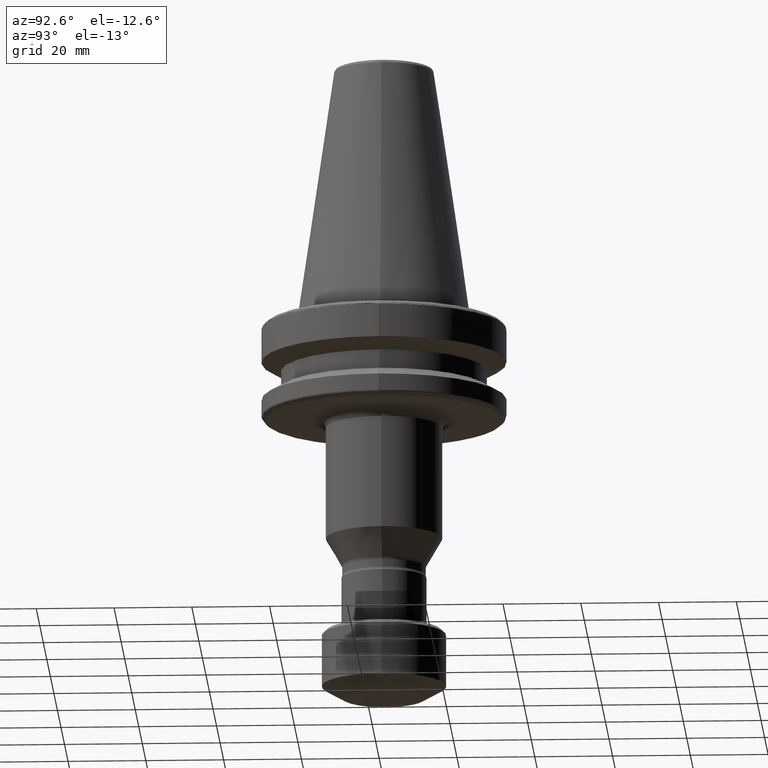
[diagram: clean part render]
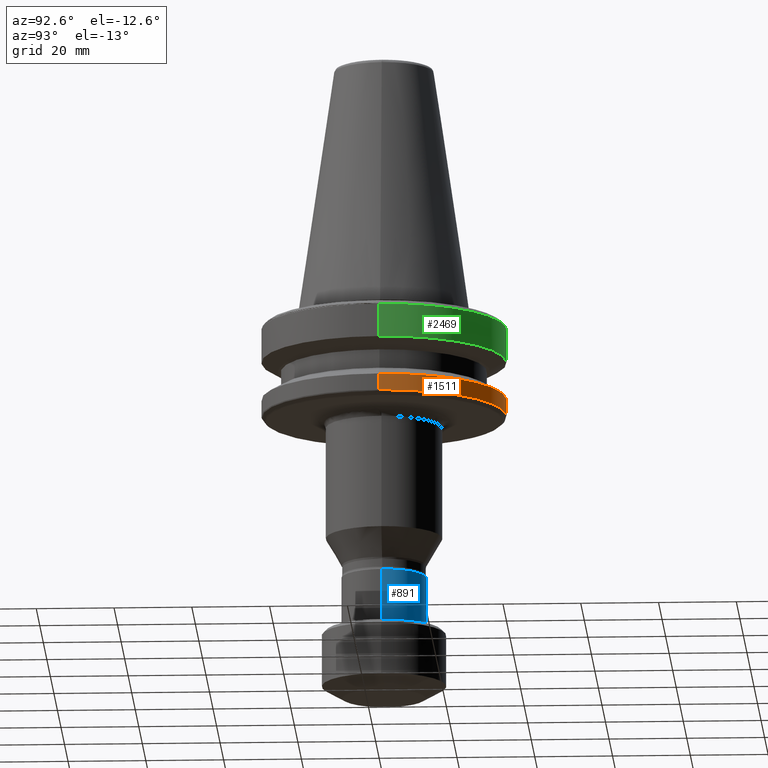
[diagram: same view with three faces highlighted in distinct colors, each labeled with its STEP entity id]
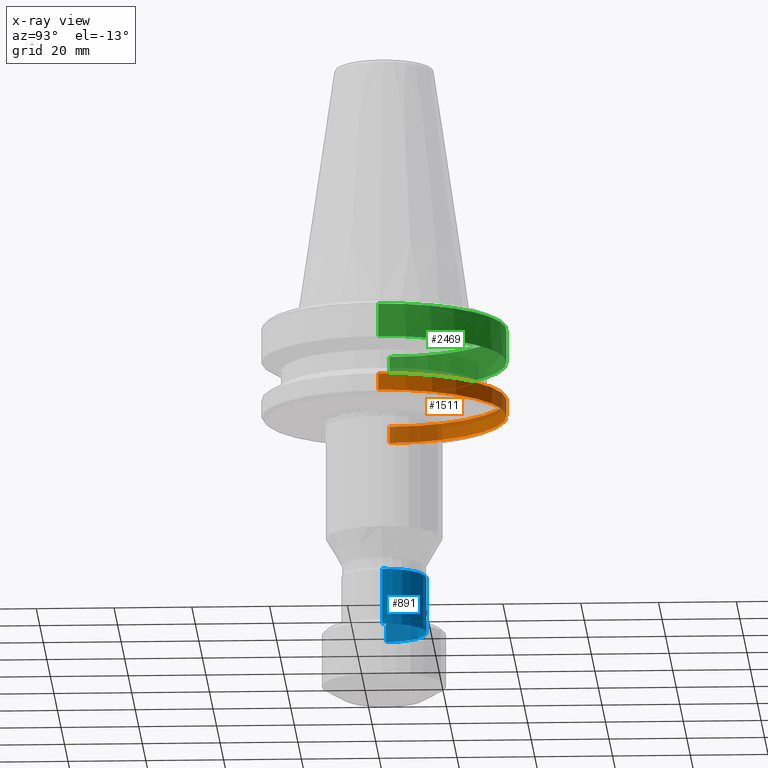
[diagram: x-ray of the same camera — body ghosted, the three highlighted faces saturated]
A machine part, auxiliary view with three faces highlighted in distinct colors.
The next image is the same camera in x-ray (body ghosted, the three faces saturated) — at least one of them is partly hidden behind the body in this view.
Their STEP definitions:

[orange] entity #1511 — the highlighted cylindrical surface (partial cylindrical patch) has radius 31.5 mm, axis along (-0, 0, 1).
#14 = LINE ( 'NONE', #2401, #592 ) ;
#123 = LINE ( 'NONE', #4025, #899 ) ;
#190 = EDGE_CURVE ( 'NONE', #3619, #1683, #1111, .T. ) ;
#395 = DIRECTION ( 'NONE',  ( -5.507058653894625200E-017, 0.0000000000000000000, 1.000000000000000000 ) ) ;
#554 = CARTESIAN_POINT ( 'NONE',  ( 109.4815869561177100, 103.8751982920319800, 76.71897067677052500 ) ) ;
#592 = VECTOR ( 'NONE', #2316, 1000.000000000000000 ) ;
#677 = CYLINDRICAL_SURFACE ( 'NONE', #1062, 31.50000000000000000 ) ;
#693 = FACE_OUTER_BOUND ( 'NONE', #2207, .T. ) ;
#849 = CIRCLE ( 'NONE', #1411, 31.49999999958851800 ) ;
#899 = VECTOR ( 'NONE', #3114, 1000.000000000000000 ) ;
#922 = EDGE_CURVE ( 'NONE', #3619, #1858, #123, .T. ) ;
#948 = EDGE_CURVE ( 'NONE', #1858, #3353, #849, .T. ) ;
#1062 = AXIS2_PLACEMENT_3D ( 'NONE', #3304, #395, #2132 ) ;
#1111 = CIRCLE ( 'NONE', #1157, 31.50000000000000000 ) ;
#1157 = AXIS2_PLACEMENT_3D ( 'NONE', #1955, #1817, #2842 ) ;
#1175 = DIRECTION ( 'NONE',  ( -1.000000000000000000, 0.0000000000000000000, 0.0000000000000000000 ) ) ;
#1411 = AXIS2_PLACEMENT_3D ( 'NONE', #1965, #3330, #1175 ) ;
#1511 = ADVANCED_FACE ( 'NONE', ( #693 ), #677, .T. ) ;
#1646 = ORIENTED_EDGE ( 'NONE', *, *, #922, .T. ) ;
#1683 = VERTEX_POINT ( 'NONE', #3828 ) ;
#1817 = DIRECTION ( 'NONE',  ( -0.0000000000000000000, -0.0000000000000000000, -1.000000000000000000 ) ) ;
#1858 = VERTEX_POINT ( 'NONE', #3742 ) ;
#1955 = CARTESIAN_POINT ( 'NONE',  ( 77.98158695652918500, 103.8751982920319800, 72.43272266320468600 ) ) ;
#1965 = CARTESIAN_POINT ( 'NONE',  ( 77.98158695652918500, 103.8751982920319800, 76.71897067677052500 ) ) ;
#2132 = DIRECTION ( 'NONE',  ( 1.000000000000000000, 0.0000000000000000000, 0.0000000000000000000 ) ) ;
#2207 = EDGE_LOOP ( 'NONE', ( #2805, #1646, #3347, #2416 ) ) ;
#2316 = DIRECTION ( 'NONE',  ( -5.507058653894625200E-017, 0.0000000000000000000, 1.000000000000000000 ) ) ;
#2401 = CARTESIAN_POINT ( 'NONE',  ( 109.4815869565291800, 103.8751982920319800, 72.43272266320468600 ) ) ;
#2416 = ORIENTED_EDGE ( 'NONE', *, *, #3320, .F. ) ;
#2805 = ORIENTED_EDGE ( 'NONE', *, *, #190, .F. ) ;
#2842 = DIRECTION ( 'NONE',  ( 0.0000000000000000000, -1.000000000000000000, 0.0000000000000000000 ) ) ;
#3114 = DIRECTION ( 'NONE',  ( -5.507058653894625200E-017, 0.0000000000000000000, 1.000000000000000000 ) ) ;
#3148 = CARTESIAN_POINT ( 'NONE',  ( 46.48158695652917800, 103.8751982823408500, 72.43272266321125100 ) ) ;
#3304 = CARTESIAN_POINT ( 'NONE',  ( 77.98158695652918500, 103.8751982920319800, 72.43272266320468600 ) ) ;
#3320 = EDGE_CURVE ( 'NONE', #1683, #3353, #14, .T. ) ;
#3330 = DIRECTION ( 'NONE',  ( -0.0000000000000000000, -0.0000000000000000000, -1.000000000000000000 ) ) ;
#3347 = ORIENTED_EDGE ( 'NONE', *, *, #948, .T. ) ;
#3353 = VERTEX_POINT ( 'NONE', #554 ) ;
#3619 = VERTEX_POINT ( 'NONE', #3148 ) ;
#3742 = CARTESIAN_POINT ( 'NONE',  ( 46.48158695694066700, 103.8751982920319800, 76.71897067677052500 ) ) ;
#3828 = CARTESIAN_POINT ( 'NONE',  ( 109.4815869565291800, 103.8751982936471700, 72.43272266320468600 ) ) ;
#4025 = CARTESIAN_POINT ( 'NONE',  ( 46.48158695652917800, 103.8751982920319800, 72.43272266320468600 ) ) ;

[blue] entity #891 — the highlighted cylindrical surface (partial cylindrical patch) has radius 10.95 mm, axis along (0, -0, 1).
#393 = DIRECTION ( 'NONE',  ( 1.000000000000000000, 0.0000000000000000000, 0.0000000000000000000 ) ) ;
#437 = EDGE_CURVE ( 'NONE', #1258, #2618, #1042, .T. ) ;
#751 = CIRCLE ( 'NONE', #3190, 10.95000000000000100 ) ;
#795 = VECTOR ( 'NONE', #3650, 1000.000000000000000 ) ;
#833 = LINE ( 'NONE', #3885, #795 ) ;
#858 = CIRCLE ( 'NONE', #2673, 10.95000000000000100 ) ;
#868 = CARTESIAN_POINT ( 'NONE',  ( 88.93158695652918800, 103.8751982920319800, 15.44949459036471000 ) ) ;
#872 = CYLINDRICAL_SURFACE ( 'NONE', #1212, 10.95000000000000100 ) ;
#875 = FACE_OUTER_BOUND ( 'NONE', #1843, .T. ) ;
#891 = ADVANCED_FACE ( 'NONE', ( #875 ), #872, .T. ) ;
#980 = EDGE_CURVE ( 'NONE', #1258, #2836, #858, .T. ) ;
#1037 = VECTOR ( 'NONE', #1129, 1000.000000000000000 ) ;
#1042 = LINE ( 'NONE', #2477, #1037 ) ;
#1061 = CARTESIAN_POINT ( 'NONE',  ( 88.93158695652918800, 103.8751982920319800, 29.86703723820469100 ) ) ;
#1128 = EDGE_CURVE ( 'NONE', #2836, #2466, #833, .T. ) ;
#1129 = DIRECTION ( 'NONE',  ( 0.0000000000000000000, -0.0000000000000000000, 1.000000000000000000 ) ) ;
#1139 = CARTESIAN_POINT ( 'NONE',  ( 77.98158695652918500, 103.8751982920319800, 29.86703723820469100 ) ) ;
#1212 = AXIS2_PLACEMENT_3D ( 'NONE', #2360, #2915, #2343 ) ;
#1258 = VERTEX_POINT ( 'NONE', #868 ) ;
#1327 = DIRECTION ( 'NONE',  ( 0.0000000000000000000, 0.0000000000000000000, 1.000000000000000000 ) ) ;
#1356 = DIRECTION ( 'NONE',  ( 0.0000000000000000000, -0.0000000000000000000, 1.000000000000000000 ) ) ;
#1383 = EDGE_CURVE ( 'NONE', #2618, #2466, #751, .T. ) ;
#1775 = ORIENTED_EDGE ( 'NONE', *, *, #437, .F. ) ;
#1843 = EDGE_LOOP ( 'NONE', ( #3004, #2013, #2452, #1775 ) ) ;
#1993 = CARTESIAN_POINT ( 'NONE',  ( 77.98158695652918500, 103.8751982920319800, 15.44949459036471000 ) ) ;
#2013 = ORIENTED_EDGE ( 'NONE', *, *, #1128, .T. ) ;
#2038 = DIRECTION ( 'NONE',  ( 1.000000000000000000, 0.0000000000000000000, 0.0000000000000000000 ) ) ;
#2343 = DIRECTION ( 'NONE',  ( 1.000000000000000000, 0.0000000000000000000, 0.0000000000000000000 ) ) ;
#2360 = CARTESIAN_POINT ( 'NONE',  ( 77.98158695652918500, 103.8751982920319800, 12.31703723820469400 ) ) ;
#2452 = ORIENTED_EDGE ( 'NONE', *, *, #1383, .F. ) ;
#2466 = VERTEX_POINT ( 'NONE', #2506 ) ;
#2477 = CARTESIAN_POINT ( 'NONE',  ( 88.93158695652918800, 103.8751982920319800, 12.31703723820469400 ) ) ;
#2506 = CARTESIAN_POINT ( 'NONE',  ( 67.03158695652918200, 103.8751982920319800, 29.86703723820469100 ) ) ;
#2618 = VERTEX_POINT ( 'NONE', #1061 ) ;
#2673 = AXIS2_PLACEMENT_3D ( 'NONE', #1993, #1356, #2038 ) ;
#2836 = VERTEX_POINT ( 'NONE', #3618 ) ;
#2915 = DIRECTION ( 'NONE',  ( 0.0000000000000000000, -0.0000000000000000000, 1.000000000000000000 ) ) ;
#3004 = ORIENTED_EDGE ( 'NONE', *, *, #980, .T. ) ;
#3190 = AXIS2_PLACEMENT_3D ( 'NONE', #1139, #1327, #393 ) ;
#3618 = CARTESIAN_POINT ( 'NONE',  ( 67.03158695652918200, 103.8751982920319800, 15.44949459036471000 ) ) ;
#3650 = DIRECTION ( 'NONE',  ( 0.0000000000000000000, -0.0000000000000000000, 1.000000000000000000 ) ) ;
#3885 = CARTESIAN_POINT ( 'NONE',  ( 67.03158695652918200, 103.8751982920319800, 12.31703723820469400 ) ) ;

[green] entity #2469 — the highlighted cylindrical surface (partial cylindrical patch) has radius 31.5 mm, axis along (-0, 0, 1).
#147 = AXIS2_PLACEMENT_3D ( 'NONE', #3595, #3605, #3477 ) ;
#306 = CYLINDRICAL_SURFACE ( 'NONE', #1446, 31.50000000000000000 ) ;
#318 = FACE_OUTER_BOUND ( 'NONE', #4004, .T. ) ;
#387 = VECTOR ( 'NONE', #3492, 1000.000000000000000 ) ;
#406 = LINE ( 'NONE', #3150, #387 ) ;
#453 = CIRCLE ( 'NONE', #1220, 31.50000000056924100 ) ;
#497 = CIRCLE ( 'NONE', #3931, 31.50000000000000000 ) ;
#717 = CARTESIAN_POINT ( 'NONE',  ( 77.98158695652918500, 103.8751982920319800, 95.10135181220469700 ) ) ;
#801 = CIRCLE ( 'NONE', #147, 31.50000000056924800 ) ;
#910 = LINE ( 'NONE', #1366, #1417 ) ;
#955 = DIRECTION ( 'NONE',  ( 1.000000000000000000, 0.0000000000000000000, 0.0000000000000000000 ) ) ;
#984 = DIRECTION ( 'NONE',  ( 0.0000000000000000000, 0.0000000000000000000, 1.000000000000000000 ) ) ;
#1027 = DIRECTION ( 'NONE',  ( 1.000000000000000000, 0.0000000000000000000, 0.0000000000000000000 ) ) ;
#1180 = EDGE_CURVE ( 'NONE', #3756, #1913, #801, .T. ) ;
#1211 = DIRECTION ( 'NONE',  ( -0.0000000000000000000, -0.0000000000000000000, -1.000000000000000000 ) ) ;
#1220 = AXIS2_PLACEMENT_3D ( 'NONE', #3053, #1211, #3371 ) ;
#1252 = VERTEX_POINT ( 'NONE', #2483 ) ;
#1259 = CARTESIAN_POINT ( 'NONE',  ( 77.98158695652918500, 103.8751982920319800, 86.66717924420468900 ) ) ;
#1265 = CARTESIAN_POINT ( 'NONE',  ( 109.4815869570984100, 103.8751982920319800, 86.56108534803942700 ) ) ;
#1366 = CARTESIAN_POINT ( 'NONE',  ( 46.48158695652917800, 103.8751982920319800, 86.66717924420468900 ) ) ;
#1388 = CIRCLE ( 'NONE', #2679, 31.49999999963487700 ) ;
#1394 = VERTEX_POINT ( 'NONE', #1265 ) ;
#1417 = VECTOR ( 'NONE', #1951, 1000.000000000000000 ) ;
#1446 = AXIS2_PLACEMENT_3D ( 'NONE', #1259, #1909, #955 ) ;
#1482 = VERTEX_POINT ( 'NONE', #3317 ) ;
#1676 = ORIENTED_EDGE ( 'NONE', *, *, #3471, .F. ) ;
#1791 = CARTESIAN_POINT ( 'NONE',  ( 69.26413358283129200, 134.1449192473573900, 95.10135181212467600 ) ) ;
#1847 = VERTEX_POINT ( 'NONE', #2214 ) ;
#1878 = ORIENTED_EDGE ( 'NONE', *, *, #2265, .F. ) ;
#1909 = DIRECTION ( 'NONE',  ( -2.753529326947312600E-017, 0.0000000000000000000, 1.000000000000000000 ) ) ;
#1913 = VERTEX_POINT ( 'NONE', #2823 ) ;
#1951 = DIRECTION ( 'NONE',  ( -2.753529326947312600E-017, 0.0000000000000000000, 1.000000000000000000 ) ) ;
#1982 = EDGE_CURVE ( 'NONE', #1482, #1913, #497, .T. ) ;
#2214 = CARTESIAN_POINT ( 'NONE',  ( 46.48158695595994100, 103.8751982920319800, 86.56108534803942700 ) ) ;
#2265 = EDGE_CURVE ( 'NONE', #1394, #1482, #406, .T. ) ;
#2469 = ADVANCED_FACE ( 'NONE', ( #318 ), #306, .T. ) ;
#2483 = CARTESIAN_POINT ( 'NONE',  ( 46.48158695652917800, 103.8751982920319800, 95.10135181319854800 ) ) ;
#2679 = AXIS2_PLACEMENT_3D ( 'NONE', #2843, #984, #3129 ) ;
#2823 = CARTESIAN_POINT ( 'NONE',  ( 86.58102411297974800, 134.1786581704825500, 95.10135181152281800 ) ) ;
#2843 = CARTESIAN_POINT ( 'NONE',  ( 77.98158695622785800, 103.8751982937190800, 95.10135181319854800 ) ) ;
#2861 = ORIENTED_EDGE ( 'NONE', *, *, #1982, .F. ) ;
#2882 = DIRECTION ( 'NONE',  ( -2.753529326947312600E-017, 0.0000000000000000000, 1.000000000000000000 ) ) ;
#3053 = CARTESIAN_POINT ( 'NONE',  ( 77.98158695652918500, 103.8751982920319800, 86.56108534803942700 ) ) ;
#3129 = DIRECTION ( 'NONE',  ( 1.000000000000000000, 0.0000000000000000000, 0.0000000000000000000 ) ) ;
#3150 = CARTESIAN_POINT ( 'NONE',  ( 109.4815869565291800, 103.8751982920319800, 86.66717924420468900 ) ) ;
#3317 = CARTESIAN_POINT ( 'NONE',  ( 109.4815869565291800, 103.8751982941855700, 95.10135181253802700 ) ) ;
#3371 = DIRECTION ( 'NONE',  ( -1.000000000000000000, 0.0000000000000000000, 0.0000000000000000000 ) ) ;
#3411 = ORIENTED_EDGE ( 'NONE', *, *, #3412, .F. ) ;
#3412 = EDGE_CURVE ( 'NONE', #1847, #1394, #453, .T. ) ;
#3471 = EDGE_CURVE ( 'NONE', #3756, #1252, #1388, .T. ) ;
#3477 = DIRECTION ( 'NONE',  ( -1.000000000000000000, 0.0000000000000000000, 0.0000000000000000000 ) ) ;
#3492 = DIRECTION ( 'NONE',  ( -2.753529326947312600E-017, 0.0000000000000000000, 1.000000000000000000 ) ) ;
#3595 = CARTESIAN_POINT ( 'NONE',  ( 77.98158695652918500, 103.8751982920319800, 95.10135181212467600 ) ) ;
#3600 = ORIENTED_EDGE ( 'NONE', *, *, #3614, .T. ) ;
#3605 = DIRECTION ( 'NONE',  ( -0.0000000000000000000, -0.0000000000000000000, -1.000000000000000000 ) ) ;
#3614 = EDGE_CURVE ( 'NONE', #1847, #1252, #910, .T. ) ;
#3756 = VERTEX_POINT ( 'NONE', #1791 ) ;
#3931 = AXIS2_PLACEMENT_3D ( 'NONE', #717, #2882, #1027 ) ;
#3988 = ORIENTED_EDGE ( 'NONE', *, *, #1180, .T. ) ;
#4004 = EDGE_LOOP ( 'NONE', ( #3411, #3600, #1676, #3988, #2861, #1878 ) ) ;